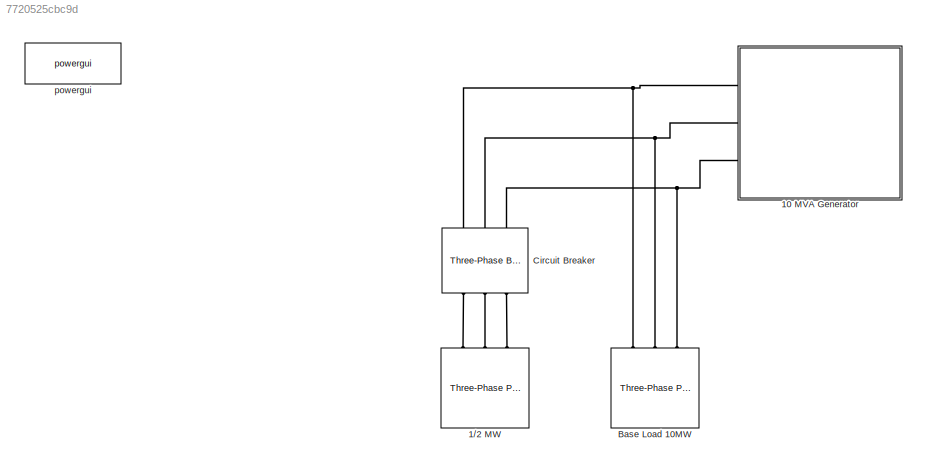
MODEL slx_7720525cbc9d
KIND model
CONFIG AbsTol = auto
CONFIG FixedStep = Ts
CONFIG MaxStep = auto
CONFIG MinStep = auto
CONFIG PreLoadFcn = Ts=5e-6;
CONFIG RelTol = 1e-3
CONFIG SampleTimeConstraint = Unconstrained
CONFIG Solver = FixedStepDiscrete
CONFIG SolverMode = Auto
CONFIG SolverName = FixedStepDiscrete
CONFIG StartTime = 0.0
CONFIG StopTime = 3
BLOCK [Reference] 1//2 MW  REF=powerlib/Elements/Three-Phase
Parallel RLC Load
  AttributesFormatString = \n
  Ports = [0, 0, 0, 0, 0, 3]
  SourceBlock = powerlib/Elements/Three-Phase\nParallel RLC Load
  SourceType = Three-Phase Parallel RLC Load
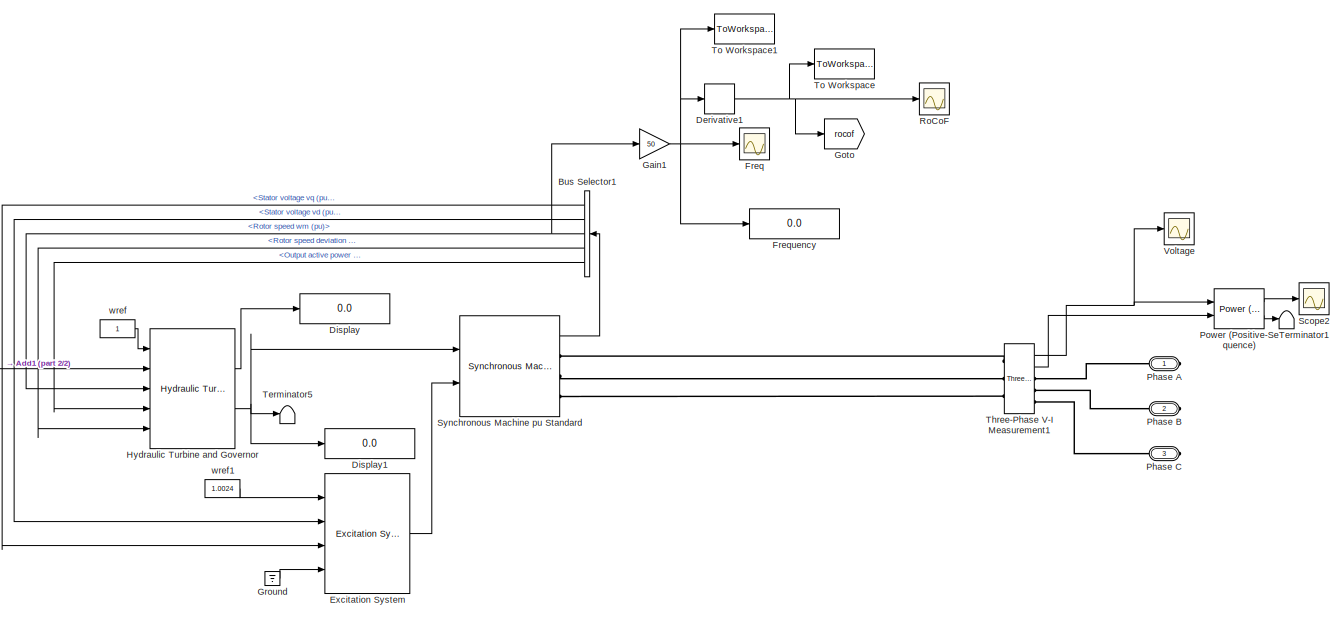
[diagram: 10 MVA Generator - part 1/2, most of the canvas]
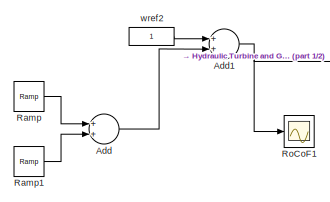
[diagram: 10 MVA Generator - part 2/2, middle left region]
BLOCK [SubSystem] 10 MVA Generator
  Ports = [0, 0, 0, 0, 0, 0, 3]
  RequestExecContextInheritance = off
  Variant = off
BLOCK [Sum] 10 MVA Generator/Add
  InputSameDT = off
  OutDataTypeStr = Inherit: Inherit via internal rule
  Ports = [2, 1]
  SaturateOnIntegerOverflow = off
BLOCK [Sum] 10 MVA Generator/Add1
  InputSameDT = off
  OutDataTypeStr = Inherit: Inherit via internal rule
  Ports = [2, 1]
  SaturateOnIntegerOverflow = off
BLOCK [BusSelector] 10 MVA Generator/Bus Selector1
  OutputSignals = dq0 components.Stator voltage  vq (pu),dq0 components.Stator voltage  vd (pu),Mechanical.Rotor speed  wm  (pu),Mechanical.Rotor speed deviation  dw (pu),Output active power   Peo (pu)
  Ports = [1, 5]
BLOCK [Derivative] 10 MVA Generator/Derivative1
BLOCK [Display] 10 MVA Generator/Display
  Decimation = 1
  Ports = [1]
BLOCK [Display] 10 MVA Generator/Display1
  Decimation = 1
  Ports = [1]
BLOCK [Reference] 10 MVA Generator/Excitation System  REF=sps_avr/Excitation System
  Ports = [4, 1]
  SourceBlock = sps_avr/Excitation System
  SourceType = Excitation System
BLOCK [Scope] 10 MVA Generator/Freq
  Ports = [1]
  ScopeSpecificationString = Simulink.scopes.TimeScopeBlockCfg('CurrentConfiguration', extmgr.ConfigurationSet(extmgr.Configuration('Core','General UI',true),extmgr.Configuration('Core','Source UI',true),extmgr.Configuration('Sources','WiredSimulink',true,'DataLoggingVariableName','ScopeData1'),extmgr.Configuration('Visuals','Time Domain',true,'SerializedDisplays',{struct('MinYLimReal','49.91846','MaxYLimReal','50.02767','YLa...<+1442ch>
BLOCK [Display] 10 MVA Generator/Frequency
  Decimation = 1
  Ports = [1]
BLOCK [Gain] 10 MVA Generator/Gain1
  Gain = 50
  OutDataTypeStr = Inherit: Inherit via internal rule
  ParamDataTypeStr = Inherit: Inherit via internal rule
  SaturateOnIntegerOverflow = off
BLOCK [Goto] 10 MVA Generator/Goto
  GotoTag = rocof
  TagVisibility = global
BLOCK [Ground] 10 MVA Generator/Ground
BLOCK [Reference] 10 MVA Generator/Hydraulic Turbine and Governor  REF=powerlib/Machines/Hydraulic Turbine
and Governor
  Ports = [5, 2]
  SourceBlock = powerlib/Machines/Hydraulic Turbine\nand Governor
  SourceType = Hydraulic Turbine and Governor
BLOCK [PMIOPort] 10 MVA Generator/Phase A
  Port = 1
  Side = Right
BLOCK [PMIOPort] 10 MVA Generator/Phase B
  Port = 2
  Side = Right
BLOCK [PMIOPort] 10 MVA Generator/Phase C
  Port = 3
  Side = Right
BLOCK [Reference] 10 MVA Generator/Power (Positive-Sequence)  REF=powerlib_meascontrol/Measurements/Power
(Positive-Sequence)
  Ports = [2, 2]
  SourceBlock = powerlib_meascontrol/Measurements/Power\n(Positive-Sequence)
  SourceType = Power (Positive-Sequence)
BLOCK [Reference] 10 MVA Generator/Ramp  REF=simulink/Sources/Ramp
  Ports = [0, 1]
  SourceBlock = simulink/Sources/Ramp
  SourceType = Ramp
BLOCK [Reference] 10 MVA Generator/Ramp1  REF=simulink/Sources/Ramp
  Ports = [0, 1]
  SourceBlock = simulink/Sources/Ramp
  SourceType = Ramp
BLOCK [Scope] 10 MVA Generator/RoCoF
  Ports = [1]
  ScopeSpecificationString = Simulink.scopes.TimeScopeBlockCfg('CurrentConfiguration', extmgr.ConfigurationSet(extmgr.Configuration('Core','General UI',true),extmgr.Configuration('Core','Source UI',true),extmgr.Configuration('Sources','WiredSimulink',true,'DataLoggingVariableName','ScopeData2'),extmgr.Configuration('Visuals','Time Domain',true,'SerializedDisplays',{struct('MinYLimReal','-0.0826','MaxYLimReal','0.05973','YLabe...<+1438ch>
BLOCK [Scope] 10 MVA Generator/RoCoF1
  Ports = [1]
  ScopeSpecificationString = Simulink.scopes.TimeScopeBlockCfg('CurrentConfiguration', extmgr.ConfigurationSet(extmgr.Configuration('Core','General UI',true),extmgr.Configuration('Core','Source UI',true),extmgr.Configuration('Sources','WiredSimulink',true,'DataLoggingVariableName','ScopeData1'),extmgr.Configuration('Visuals','Time Domain',true,'SerializedDisplays',{struct('MinYLimReal','0.9875','MaxYLimReal','1.1125','YLabelR...<+1423ch>
BLOCK [Scope] 10 MVA Generator/Scope2
  Ports = [1]
  ScopeSpecificationString = Simulink.scopes.TimeScopeBlockCfg('CurrentConfiguration', extmgr.ConfigurationSet(extmgr.Configuration('Core','General UI',true),extmgr.Configuration('Core','Source UI',true),extmgr.Configuration('Sources','WiredSimulink',true,'DataLoggingVariableName','ScopeData2'),extmgr.Configuration('Visuals','Time Domain',true,'SerializedDisplays',{struct('MinYLimReal','-1351394.71586','MaxYLimReal','12162552...<+1507ch>
BLOCK [Reference] 10 MVA Generator/Synchronous Machine pu Standard  REF=powerlib/Machines/Synchronous Machine
pu Standard
  Ports = [2, 1, 0, 0, 0, 0, 3]
  SourceBlock = powerlib/Machines/Synchronous Machine\npu Standard
  SourceType = Synchronous Machine
BLOCK [Terminator] 10 MVA Generator/Terminator1
BLOCK [Terminator] 10 MVA Generator/Terminator5
BLOCK [Reference] 10 MVA Generator/Three-Phase V-I Measurement1  REF=powerlib/Measurements/Three-Phase
V-I Measurement
  Ports = [0, 2, 0, 0, 0, 3, 3]
  SourceBlock = powerlib/Measurements/Three-Phase\nV-I Measurement
  SourceType = Three-Phase VI Measurement
BLOCK [ToWorkspace] 10 MVA Generator/To Workspace
  Decimation = 4
  FixptAsFi = on
  MaxDataPoints = inf
  Ports = [1]
  SampleTime = -1
  Save2DSignal = 3-D array (concatenate along third dimension)
  SaveFormat = Timeseries
  VariableName = rocof
BLOCK [ToWorkspace] 10 MVA Generator/To Workspace1
  Decimation = 4
  FixptAsFi = on
  MaxDataPoints = inf
  Ports = [1]
  SampleTime = -1
  Save2DSignal = 3-D array (concatenate along third dimension)
  SaveFormat = Timeseries
  VariableName = freq
BLOCK [Scope] 10 MVA Generator/Voltage
  Ports = [1]
  ScopeSpecificationString = Simulink.scopes.TimeScopeBlockCfg('CurrentConfiguration', extmgr.ConfigurationSet(extmgr.Configuration('Core','General UI',true),extmgr.Configuration('Core','Source UI',true),extmgr.Configuration('Sources','WiredSimulink',true,'DataLoggingVariableName','ScopeData1'),extmgr.Configuration('Visuals','Time Domain',true,'SerializedDisplays',{struct('MinYLimReal','563.23217','MaxYLimReal','563.24441','Y...<+1567ch>
BLOCK [Constant] 10 MVA Generator/wref
BLOCK [Constant] 10 MVA Generator/wref1
  Value = 1.0024
BLOCK [Constant] 10 MVA Generator/wref2
BLOCK [Reference] Base Load 10MW  REF=powerlib/Elements/Three-Phase
Parallel RLC Load
  AttributesFormatString = \n
  Ports = [0, 0, 0, 0, 0, 3]
  SourceBlock = powerlib/Elements/Three-Phase\nParallel RLC Load
  SourceType = Three-Phase Parallel RLC Load
BLOCK [Reference] Circuit Breaker  REF=powerlib/Elements/Three-Phase Breaker
  Ports = [0, 0, 0, 0, 0, 3, 3]
  SourceBlock = powerlib/Elements/Three-Phase Breaker
  SourceType = Three-Phase Breaker
BLOCK [Reference] powergui  REF=powerlib/powergui
  Ports = []
  Priority = 2
  SourceBlock = powerlib/powergui
  SourceType = PSB option menu block
NET 10 MVA Generator/Add1:1 -> 10 MVA Generator/Hydraulic Turbine and Governor:2, 10 MVA Generator/RoCoF1:1
LINE 10 MVA Generator/Add:1 -> 10 MVA Generator/Add1:2
LINE 10 MVA Generator/Bus Selector1:1 -> 10 MVA Generator/Excitation System:3
LINE 10 MVA Generator/Bus Selector1:2 -> 10 MVA Generator/Excitation System:2
NET 10 MVA Generator/Bus Selector1:3 -> 10 MVA Generator/Gain1:1, 10 MVA Generator/Hydraulic Turbine and Governor:3
LINE 10 MVA Generator/Bus Selector1:4 -> 10 MVA Generator/Hydraulic Turbine and Governor:5
LINE 10 MVA Generator/Bus Selector1:5 -> 10 MVA Generator/Hydraulic Turbine and Governor:4
NET 10 MVA Generator/Derivative1:1 -> 10 MVA Generator/Goto:1, 10 MVA Generator/RoCoF:1, 10 MVA Generator/To Workspace:1
LINE 10 MVA Generator/Excitation System:1 -> 10 MVA Generator/Synchronous Machine pu Standard:2
NET 10 MVA Generator/Gain1:1 -> 10 MVA Generator/Derivative1:1, 10 MVA Generator/Freq:1, 10 MVA Generator/Frequency:1, 10 MVA Generator/To Workspace1:1
LINE 10 MVA Generator/Ground:1 -> 10 MVA Generator/Excitation System:4
LINE 10 MVA Generator/Hydraulic Turbine and Governor:1 -> 10 MVA Generator/Display:1
NET 10 MVA Generator/Hydraulic Turbine and Governor:2 -> 10 MVA Generator/Display1:1, 10 MVA Generator/Synchronous Machine pu Standard:1, 10 MVA Generator/Terminator5:1
LINE 10 MVA Generator/Power (Positive-Sequence):1 -> 10 MVA Generator/Scope2:1
LINE 10 MVA Generator/Power (Positive-Sequence):2 -> 10 MVA Generator/Terminator1:1
LINE 10 MVA Generator/Ramp1:1 -> 10 MVA Generator/Add:2
LINE 10 MVA Generator/Ramp:1 -> 10 MVA Generator/Add:1
LINE 10 MVA Generator/Synchronous Machine pu Standard:1 -> 10 MVA Generator/Bus Selector1:1
NET 10 MVA Generator/Three-Phase V-I Measurement1:1 -> 10 MVA Generator/Power (Positive-Sequence):1, 10 MVA Generator/Voltage:1
LINE 10 MVA Generator/Three-Phase V-I Measurement1:2 -> 10 MVA Generator/Power (Positive-Sequence):2
LINE 10 MVA Generator/wref1:1 -> 10 MVA Generator/Excitation System:1
LINE 10 MVA Generator/wref2:1 -> 10 MVA Generator/Add1:1
LINE 10 MVA Generator/wref:1 -> 10 MVA Generator/Hydraulic Turbine and Governor:1
PLINE 1//2 MW:LConn1 -- Circuit Breaker:LConn1
PLINE 1//2 MW:LConn2 -- Circuit Breaker:LConn2
PLINE 1//2 MW:LConn3 -- Circuit Breaker:LConn3
PLINE 10 MVA Generator/Phase A:RConn1 -- 10 MVA Generator/Three-Phase V-I Measurement1:RConn1
PLINE 10 MVA Generator/Phase B:RConn1 -- 10 MVA Generator/Three-Phase V-I Measurement1:RConn2
PLINE 10 MVA Generator/Phase C:RConn1 -- 10 MVA Generator/Three-Phase V-I Measurement1:RConn3
PLINE 10 MVA Generator/Synchronous Machine pu Standard:RConn1 -- 10 MVA Generator/Three-Phase V-I Measurement1:LConn1
PLINE 10 MVA Generator/Synchronous Machine pu Standard:RConn2 -- 10 MVA Generator/Three-Phase V-I Measurement1:LConn2
PLINE 10 MVA Generator/Synchronous Machine pu Standard:RConn3 -- 10 MVA Generator/Three-Phase V-I Measurement1:LConn3
PNET net1: 10 MVA Generator:RConn1 -- Base Load 10MW:LConn1 -- Circuit Breaker:RConn1
PNET net2: 10 MVA Generator:RConn2 -- Base Load 10MW:LConn2 -- Circuit Breaker:RConn2
PNET net3: 10 MVA Generator:RConn3 -- Base Load 10MW:LConn3 -- Circuit Breaker:RConn3
note: NET lines group one-source signal fan-out (src -> all destinations, sorted); 1:1 wires keep LINE; PNET lines group multi-terminal physical nets as a canonical sorted terminal list (undirected conserving connections); 2-terminal nets keep the pairwise PLINE form
